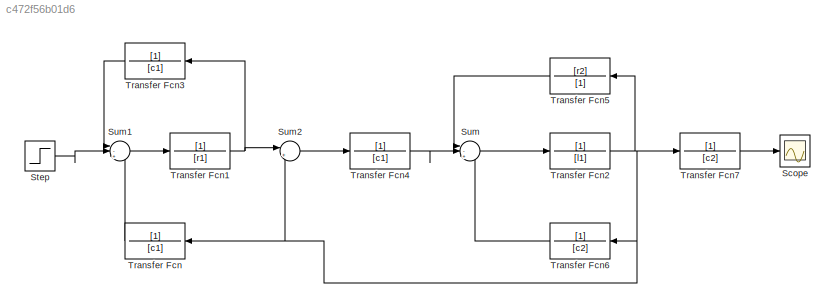
MODEL slx_c472f56b01d6
KIND model
CONFIG AbsTol = auto
CONFIG EnableMultiTasking = off
CONFIG FixedStep = auto
CONFIG MaxStep = auto
CONFIG MinStep = auto
CONFIG RelTol = 1e-3
CONFIG SampleTimeConstraint = Unconstrained
CONFIG Solver = VariableStepAuto
CONFIG SolverName = VariableStepAuto
CONFIG StartTime = 0.0
CONFIG StopTime = 10.0
BLOCK [Scope] Scope
  Floating = off
  NumInputPorts = 1
  Ports = [1]
  ScopeSpecificationString = Simulink.scopes.TimeScopeBlockCfg('CurrentConfiguration', extmgr.ConfigurationSet(extmgr.Configuration('Core','General UI',true),extmgr.Configuration('Core','Source UI',true),extmgr.Configuration('Sources','WiredSimulink',true),extmgr.Configuration('Visuals','Time Domain',true),extmgr.Configuration('Tools','Plot Navigation',true),extmgr.Configuration('Tools','Measurements',true)),'Version','2020a'...<+1ch>
BLOCK [Step] Step
  SampleTime = 0
BLOCK [Sum] Sum
  Inputs = |-+-
  Ports = [3, 1]
BLOCK [Sum] Sum1
  Inputs = |-++
  Ports = [3, 1]
BLOCK [Sum] Sum2
  Inputs = |+-
  Ports = [2, 1]
BLOCK [TransferFcn] Transfer Fcn
  Denominator = [c1]
  NameLocation = top
BLOCK [TransferFcn] Transfer Fcn1
  Denominator = [r1]
BLOCK [TransferFcn] Transfer Fcn2
  Denominator = [l1]
BLOCK [TransferFcn] Transfer Fcn3
  Denominator = [c1]
  NameLocation = top
BLOCK [TransferFcn] Transfer Fcn4
  Denominator = [c1]
BLOCK [TransferFcn] Transfer Fcn5
  Denominator = [1]
  NameLocation = top
  Numerator = [r2]
BLOCK [TransferFcn] Transfer Fcn6
  Denominator = [c2]
  NameLocation = top
BLOCK [TransferFcn] Transfer Fcn7
  Denominator = [c2]
LINE Step:1 -> Sum1:2
LINE Sum1:1 -> Transfer Fcn1:1
LINE Sum2:1 -> Transfer Fcn4:1
LINE Sum:1 -> Transfer Fcn2:1
NET Transfer Fcn1:1 -> Sum2:1, Transfer Fcn3:1
NET Transfer Fcn2:1 -> Sum2:2, Transfer Fcn5:1, Transfer Fcn6:1, Transfer Fcn7:1, Transfer Fcn:1
LINE Transfer Fcn3:1 -> Sum1:1
LINE Transfer Fcn4:1 -> Sum:2
LINE Transfer Fcn5:1 -> Sum:1
LINE Transfer Fcn6:1 -> Sum:3
LINE Transfer Fcn7:1 -> Scope:1
LINE Transfer Fcn:1 -> Sum1:3
note: NET lines group one-source signal fan-out (src -> all destinations, sorted); 1:1 wires keep LINE
